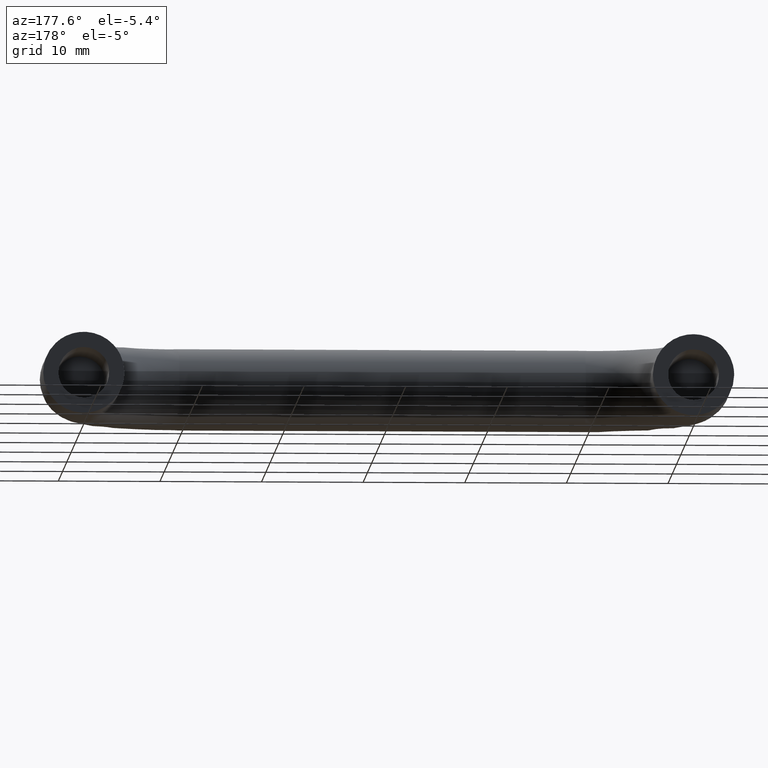
[diagram: clean part render]
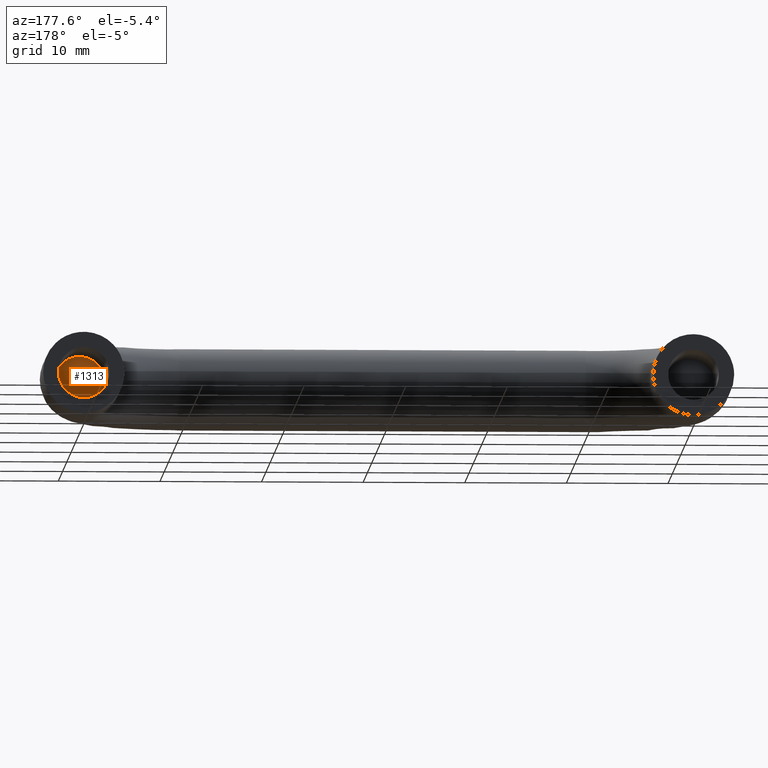
[diagram: same view with one face highlighted and labeled with its STEP entity id]
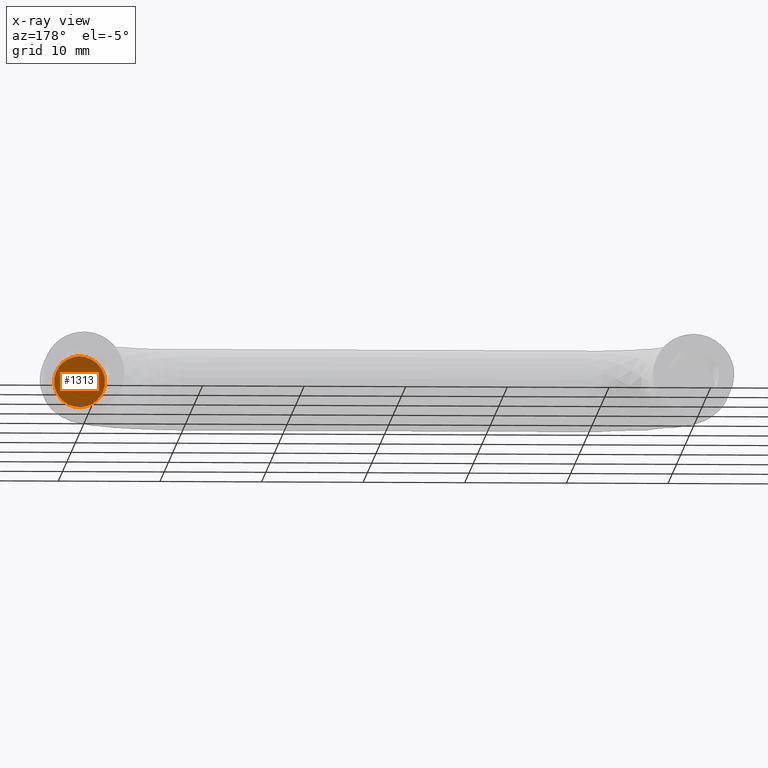
[diagram: x-ray of the same camera — body ghosted, the highlighted face saturated]
A machine part, auxiliary view. The second image highlights one B-rep face of the part: STEP entity #1313.
The next image is the same camera in x-ray: the body ghosted, the highlighted face saturated — about 26% of this face is hidden behind the body in this view.
In plain terms, the highlighted face is a freeform B-spline surface patch.
Its self-contained STEP definition (entity closure, byte-faithful):
#244=CARTESIAN_POINT('',(60.0,-10.0,2.500000000000000));
#245=VERTEX_POINT('',#244);
#246=CARTESIAN_POINT('',(57.507706665673098,-10.0,0.196147739394916));
#247=VERTEX_POINT('',#246);
#248=CARTESIAN_POINT('',(60.0,-10.0,2.500000000000000));
#249=CARTESIAN_POINT('',(57.689023770994559,-10.0,2.500000000000000));
#250=CARTESIAN_POINT('',(57.507706665673091,-10.000000000000002,0.196147739394916));
#258=(BOUNDED_CURVE()B_SPLINE_CURVE(2,(#248,#249,#250),.UNSPECIFIED.,.F.,.U.)B_SPLINE_CURVE_WITH_KNOTS((3,3),(0.0,0.236331300622408),.UNSPECIFIED.)CURVE()GEOMETRIC_REPRESENTATION_ITEM()RATIONAL_B_SPLINE_CURVE((1.0,0.723120658617333,0.969723356150197))REPRESENTATION_ITEM(''));
#259=EDGE_CURVE('',#245,#247,#258,.T.);
#300=CARTESIAN_POINT('',(62.492293334326902,-10.0,-0.196147739394915));
#301=VERTEX_POINT('',#300);
#307=CARTESIAN_POINT('',(62.492293334326895,-10.0,-0.196147739394915));
#308=CARTESIAN_POINT('',(62.500000000000007,-10.000000000000002,-0.098225267594826));
#309=CARTESIAN_POINT('',(62.500000000000000,-10.0,0.0));
#310=CARTESIAN_POINT('',(62.500000000000000,-10.000000000000002,2.500000000000000));
#311=CARTESIAN_POINT('',(60.0,-10.0,2.500000000000000));
#319=(BOUNDED_CURVE()B_SPLINE_CURVE(2,(#307,#308,#309,#310,#311),.UNSPECIFIED.,.F.,.U.)B_SPLINE_CURVE_WITH_KNOTS((3,2,3),(0.736331300622408,0.750000000000000,1.0),.UNSPECIFIED.)CURVE()GEOMETRIC_REPRESENTATION_ITEM()RATIONAL_B_SPLINE_CURVE((0.969723356150197,0.983986122569215,1.0,0.707106781186548,1.0))REPRESENTATION_ITEM(''));
#320=EDGE_CURVE('',#301,#245,#319,.T.);
#343=CARTESIAN_POINT('',(60.0,-10.0,-2.500000000000000));
#344=VERTEX_POINT('',#343);
#345=CARTESIAN_POINT('',(57.507706665673091,-10.0,0.196147739394916));
#346=CARTESIAN_POINT('',(57.499999999999993,-9.999999999999998,0.098225267594826));
#347=CARTESIAN_POINT('',(57.499999999999993,-10.0,0.0));
#348=CARTESIAN_POINT('',(57.499999999999986,-10.000000000000002,-2.500000000000000));
#349=CARTESIAN_POINT('',(60.0,-10.0,-2.500000000000000));
#357=(BOUNDED_CURVE()B_SPLINE_CURVE(2,(#345,#346,#347,#348,#349),.UNSPECIFIED.,.F.,.U.)B_SPLINE_CURVE_WITH_KNOTS((3,2,3),(0.236331300622408,0.250000000000000,0.500000000000000),.UNSPECIFIED.)CURVE()GEOMETRIC_REPRESENTATION_ITEM()RATIONAL_B_SPLINE_CURVE((0.969723356150197,0.983986122569215,1.0,0.707106781186548,1.0))REPRESENTATION_ITEM(''));
#358=EDGE_CURVE('',#247,#344,#357,.T.);
#360=CARTESIAN_POINT('',(60.0,-10.0,-2.500000000000000));
#361=CARTESIAN_POINT('',(62.310976229005433,-10.0,-2.500000000000000));
#362=CARTESIAN_POINT('',(62.492293334326902,-10.0,-0.196147739394915));
#370=(BOUNDED_CURVE()B_SPLINE_CURVE(2,(#360,#361,#362),.UNSPECIFIED.,.F.,.U.)B_SPLINE_CURVE_WITH_KNOTS((3,3),(0.500000000000000,0.736331300622408),.UNSPECIFIED.)CURVE()GEOMETRIC_REPRESENTATION_ITEM()RATIONAL_B_SPLINE_CURVE((1.0,0.723120658617333,0.969723356150197))REPRESENTATION_ITEM(''));
#371=EDGE_CURVE('',#344,#301,#370,.T.);
#1302=CARTESIAN_POINT('',(57.251013623274282,-10.0,2.749749990309030));
#1303=CARTESIAN_POINT('',(62.748986242615260,-10.0,2.749749990309030));
#1304=CARTESIAN_POINT('',(57.251013623274282,-10.0,-2.749750124419481));
#1305=CARTESIAN_POINT('',(62.748986242615260,-10.0,-2.749750124419481));
#1306=B_SPLINE_SURFACE_WITH_KNOTS('',1,1,((#1302,#1304),(#1303,#1305)),.UNSPECIFIED.,.F.,.F.,.U.,(2,2),(2,2),(0.0,5.497972619340985),(0.0,5.499500114728511),.UNSPECIFIED.);
#1307=ORIENTED_EDGE('',*,*,#320,.F.);
#1308=ORIENTED_EDGE('',*,*,#371,.F.);
#1309=ORIENTED_EDGE('',*,*,#358,.F.);
#1310=ORIENTED_EDGE('',*,*,#259,.F.);
#1311=EDGE_LOOP('',(#1307,#1308,#1309,#1310));
#1312=FACE_OUTER_BOUND('',#1311,.T.);
#1313=ADVANCED_FACE('',(#1312),#1306,.T.);